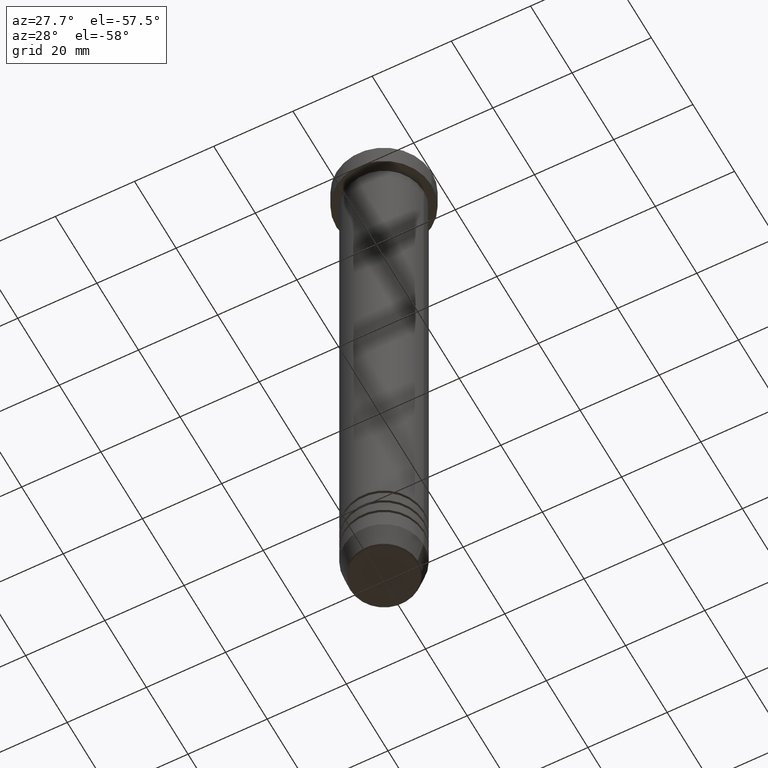
[diagram: clean part render]
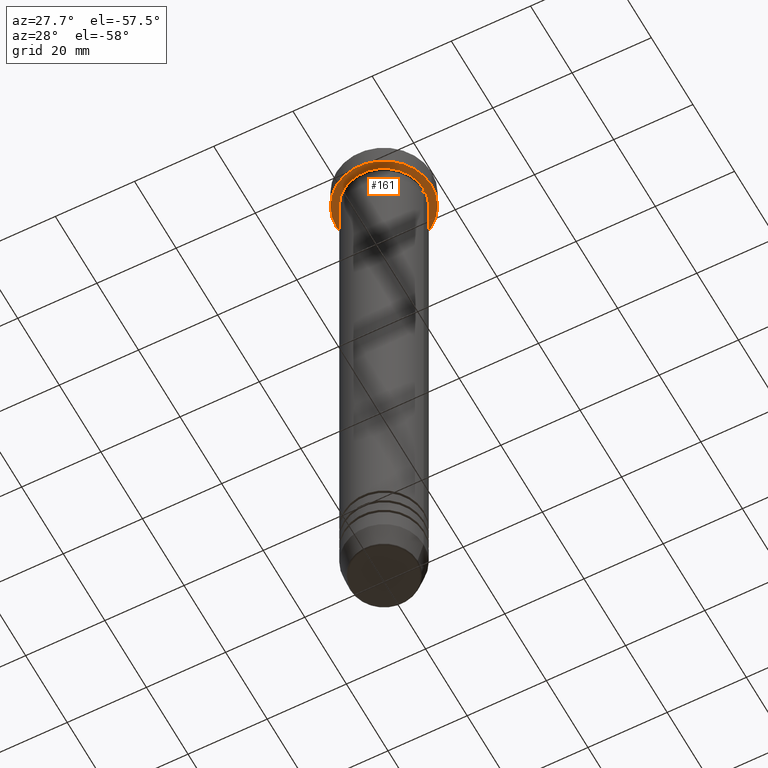
[diagram: same view with one face highlighted and labeled with its STEP entity id]
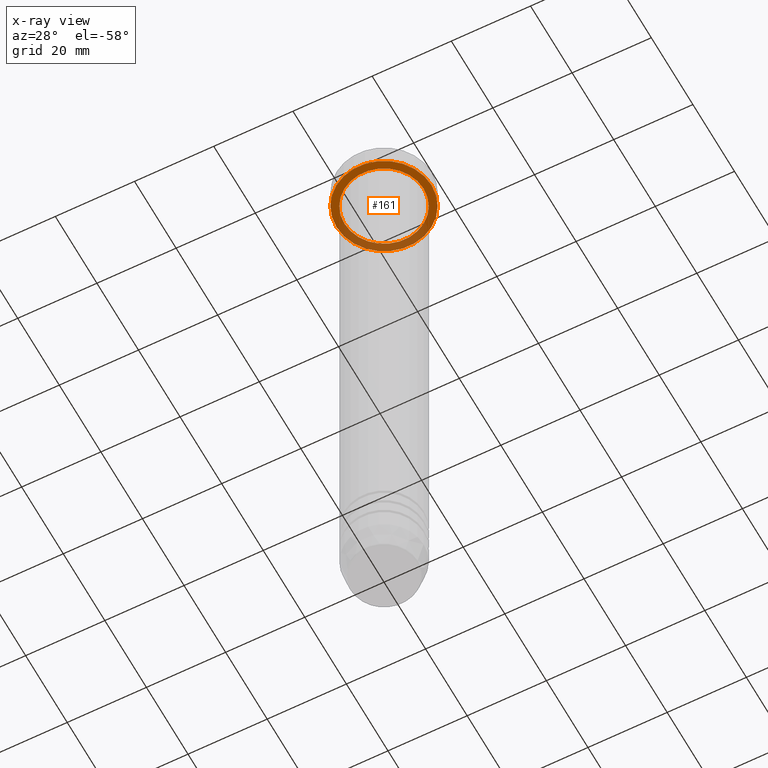
[diagram: x-ray of the same camera — body ghosted, the highlighted face saturated]
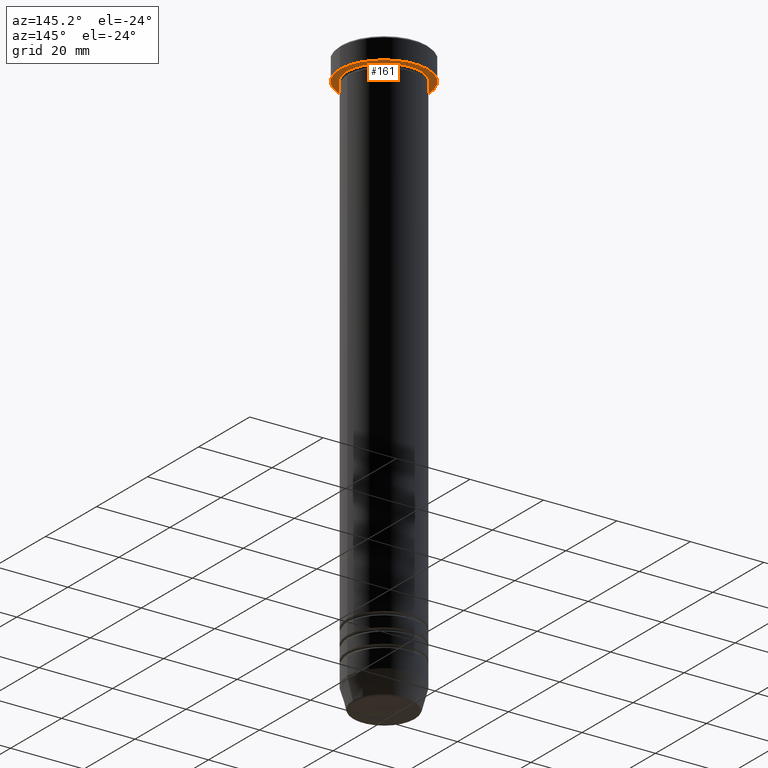
[diagram: same view with one face highlighted and labeled with its STEP entity id]
A machine part, auxiliary view. The second image highlights one B-rep face of the part: STEP entity #161.
The next image is the same camera in x-ray: the body ghosted, the highlighted face saturated — about 34% of this face is hidden behind the body in this view.
A second angle (auxiliary view) of the same face is appended — the face is thin or edge-on in the first view.
In plain terms, the highlighted planar face has unit normal (0, 0, -1).
Its self-contained STEP definition (entity closure, byte-faithful):
#17 = EDGE_CURVE ( 'NONE', #61, #193, #237, .T. ) ;
#40 = PLANE ( 'NONE',  #933 ) ;
#54 = ORIENTED_EDGE ( 'NONE', *, *, #445, .T. ) ;
#61 = VERTEX_POINT ( 'NONE', #716 ) ;
#83 = ORIENTED_EDGE ( 'NONE', *, *, #972, .F. ) ;
#109 = DIRECTION ( 'NONE',  ( 1.000000000000000000, 0.000000000000000000, 0.000000000000000000 ) ) ;
#112 = AXIS2_PLACEMENT_3D ( 'NONE', #179, #743, #109 ) ;
#136 = FACE_BOUND ( 'NONE', #748, .T. ) ;
#149 = VERTEX_POINT ( 'NONE', #362 ) ;
#161 = ADVANCED_FACE ( 'NONE', ( #136, #635 ), #40, .T. ) ;
#179 = CARTESIAN_POINT ( 'NONE',  ( 0.000000000000000000, 0.000000000000000000, -6.000000000000000000 ) ) ;
#184 = DIRECTION ( 'NONE',  ( -0.000000000000000000, -0.000000000000000000, 1.000000000000000000 ) ) ;
#192 = DIRECTION ( 'NONE',  ( -1.000000000000000000, 0.000000000000000000, 0.000000000000000000 ) ) ;
#193 = VERTEX_POINT ( 'NONE', #512 ) ;
#237 = CIRCLE ( 'NONE', #494, 10.00000000000000000 ) ;
#238 = CIRCLE ( 'NONE', #320, 10.00000000000000000 ) ;
#240 = CIRCLE ( 'NONE', #112, 12.00000000000000000 ) ;
#250 = DIRECTION ( 'NONE',  ( -1.000000000000000000, 0.000000000000000000, -0.000000000000000000 ) ) ;
#300 = EDGE_LOOP ( 'NONE', ( #83, #803 ) ) ;
#311 = CARTESIAN_POINT ( 'NONE',  ( 0.000000000000000000, 12.00000000000000000, -6.000000000000000000 ) ) ;
#317 = DIRECTION ( 'NONE',  ( 0.000000000000000000, 0.000000000000000000, -1.000000000000000000 ) ) ;
#320 = AXIS2_PLACEMENT_3D ( 'NONE', #995, #742, #415 ) ;
#322 = AXIS2_PLACEMENT_3D ( 'NONE', #526, #356, #850 ) ;
#324 = VERTEX_POINT ( 'NONE', #569 ) ;
#356 = DIRECTION ( 'NONE',  ( -0.000000000000000000, -0.000000000000000000, 1.000000000000000000 ) ) ;
#362 = CARTESIAN_POINT ( 'NONE',  ( 12.00000000000000000, 0.000000000000000000, -6.000000000000000000 ) ) ;
#415 = DIRECTION ( 'NONE',  ( -1.000000000000000000, 0.000000000000000000, 0.000000000000000000 ) ) ;
#445 = EDGE_CURVE ( 'NONE', #193, #61, #238, .T. ) ;
#494 = AXIS2_PLACEMENT_3D ( 'NONE', #909, #184, #192 ) ;
#512 = CARTESIAN_POINT ( 'NONE',  ( 10.00000000000000000, 1.224646799147353256E-15, -6.000000000000000000 ) ) ;
#526 = CARTESIAN_POINT ( 'NONE',  ( 0.000000000000000000, 0.000000000000000000, -6.000000000000000000 ) ) ;
#569 = CARTESIAN_POINT ( 'NONE',  ( -12.00000000000000000, 1.469576158976823947E-15, -6.000000000000000000 ) ) ;
#635 = FACE_OUTER_BOUND ( 'NONE', #300, .T. ) ;
#643 = CIRCLE ( 'NONE', #322, 12.00000000000000000 ) ;
#716 = CARTESIAN_POINT ( 'NONE',  ( -10.00000000000000000, 0.000000000000000000, -6.000000000000000000 ) ) ;
#719 = ORIENTED_EDGE ( 'NONE', *, *, #17, .T. ) ;
#742 = DIRECTION ( 'NONE',  ( -0.000000000000000000, -0.000000000000000000, 1.000000000000000000 ) ) ;
#743 = DIRECTION ( 'NONE',  ( -0.000000000000000000, -0.000000000000000000, 1.000000000000000000 ) ) ;
#748 = EDGE_LOOP ( 'NONE', ( #719, #54 ) ) ;
#803 = ORIENTED_EDGE ( 'NONE', *, *, #833, .F. ) ;
#833 = EDGE_CURVE ( 'NONE', #324, #149, #240, .T. ) ;
#850 = DIRECTION ( 'NONE',  ( 1.000000000000000000, 0.000000000000000000, 0.000000000000000000 ) ) ;
#909 = CARTESIAN_POINT ( 'NONE',  ( 0.000000000000000000, 0.000000000000000000, -6.000000000000000000 ) ) ;
#933 = AXIS2_PLACEMENT_3D ( 'NONE', #311, #317, #250 ) ;
#972 = EDGE_CURVE ( 'NONE', #149, #324, #643, .T. ) ;
#995 = CARTESIAN_POINT ( 'NONE',  ( 0.000000000000000000, 0.000000000000000000, -6.000000000000000000 ) ) ;